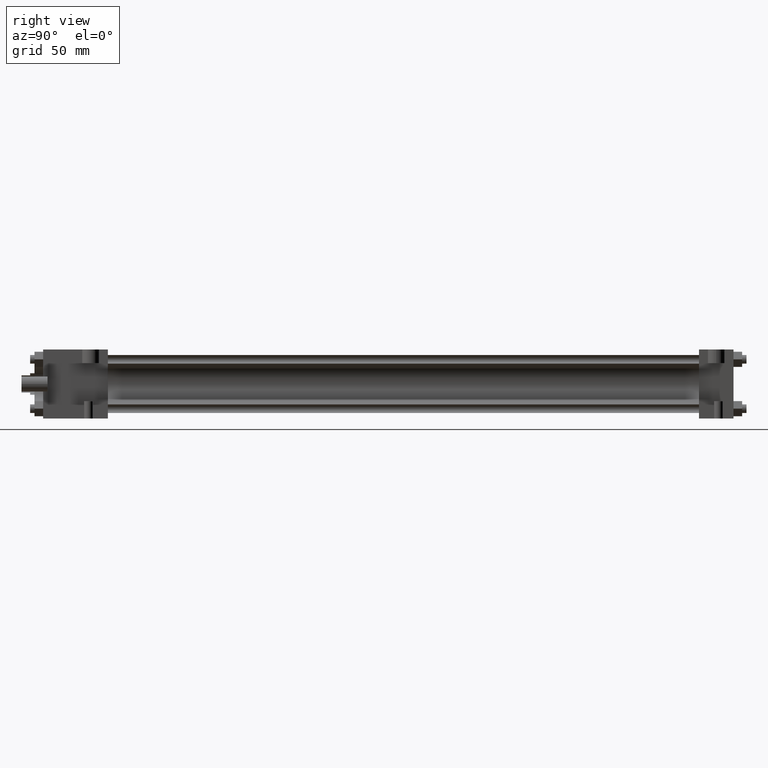
[diagram: clean part render]
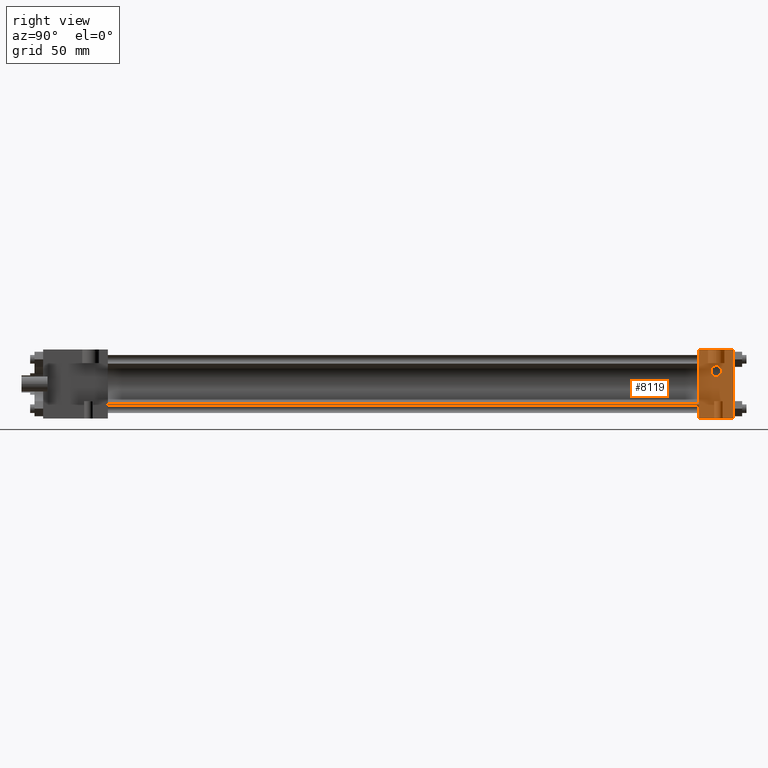
[diagram: same view with one face highlighted and labeled with its STEP entity id]
A machine part, right view. The second image highlights one B-rep face of the part: STEP entity #8119.
In plain terms, the highlighted planar face has unit normal (1, 0, 0).
Its self-contained STEP definition (entity closure, byte-faithful):
#4187=VERTEX_POINT('',#4189);
#4189=CARTESIAN_POINT('',(2.540000000E+001,4.984750000E+002,-2.540000000E+001));
#4191=EDGE_CURVE('',#4187,#4196,#4192,.T.);
#4192=LINE('',#4193,#4194);
#4193=CARTESIAN_POINT('',(2.540000000E+001,4.984750000E+002,-2.540000000E+001));
#4194=VECTOR('',#4195,1.0E+000);
#4195=DIRECTION('',(0.0E+000,0.0E+000,1.0E+000));
#4196=VERTEX_POINT('',#4197);
#4197=CARTESIAN_POINT('',(2.540000000E+001,4.984750000E+002,2.540000000E+001));
#4427=EDGE_CURVE('',#4432,#4433,#4428,.T.);
#4428=LINE('',#4429,#4430);
#4429=CARTESIAN_POINT('',(2.540000000E+001,5.238750000E+002,-2.540000000E+001));
#4430=VECTOR('',#4431,1.0E+000);
#4431=DIRECTION('',(0.0E+000,0.0E+000,1.0E+000));
#4432=VERTEX_POINT('',#4434);
#4433=VERTEX_POINT('',#4435);
#4434=CARTESIAN_POINT('',(2.540000000E+001,5.238750000E+002,-2.540000000E+001));
#4435=CARTESIAN_POINT('',(2.540000000E+001,5.238750000E+002,2.540000000E+001));
#4563=EDGE_CURVE('',#4432,#4187,#4564,.T.);
#4564=LINE('',#4565,#4566);
#4565=CARTESIAN_POINT('',(2.540000000E+001,5.238750000E+002,-2.540000000E+001));
#4566=VECTOR('',#4567,1.0E+000);
#4567=DIRECTION('',(0.0E+000,-1.0E+000,0.0E+000));
#4627=EDGE_CURVE('',#4433,#4196,#4628,.T.);
#4628=LINE('',#4629,#4630);
#4629=CARTESIAN_POINT('',(2.540000000E+001,5.238750000E+002,2.540000000E+001));
#4630=VECTOR('',#4631,1.0E+000);
#4631=DIRECTION('',(0.0E+000,-1.0E+000,0.0E+000));
#4659=FACE_OUTER_BOUND('',#4661,.T.);
#4660=FACE_BOUND('',#4662,.T.);
#4661=EDGE_LOOP('',(#4663));
#4662=EDGE_LOOP('',(#4672,#4673,#4674,#4675));
#4663=ORIENTED_EDGE('',*,*,#4664,.T.);
#4664=EDGE_CURVE('',#4670,#4670,#4665,.T.);
#4665=CIRCLE('',#4666,3.968750000E+000);
#4666=AXIS2_PLACEMENT_3D('',#4667,#4668,#4669);
#4667=CARTESIAN_POINT('',(2.540000000E+001,5.111750000E+002,9.525000000E+000));
#4668=DIRECTION('',(-1.0E+000,0.0E+000,0.0E+000));
#4669=DIRECTION('',(0.0E+000,0.0E+000,-1.0E+000));
#4670=VERTEX_POINT('',#4671);
#4671=CARTESIAN_POINT('',(2.540000000E+001,5.151437500E+002,9.525000000E+000));
#4672=ORIENTED_EDGE('',*,*,#4563,.F.);
#4673=ORIENTED_EDGE('',*,*,#4427,.T.);
#4674=ORIENTED_EDGE('',*,*,#4627,.T.);
#4675=ORIENTED_EDGE('',*,*,#4191,.F.);
#4676=PLANE('',#4677);
#4677=AXIS2_PLACEMENT_3D('',#4678,#4679,#4680);
#4678=CARTESIAN_POINT('',(2.540000000E+001,5.238750000E+002,-2.540000000E+001));
#4679=DIRECTION('',(1.0E+000,0.0E+000,0.0E+000));
#4680=DIRECTION('',(0.0E+000,0.0E+000,-1.0E+000));
#8119=ADVANCED_FACE('',(#4659,#4660),#4676,.T.);